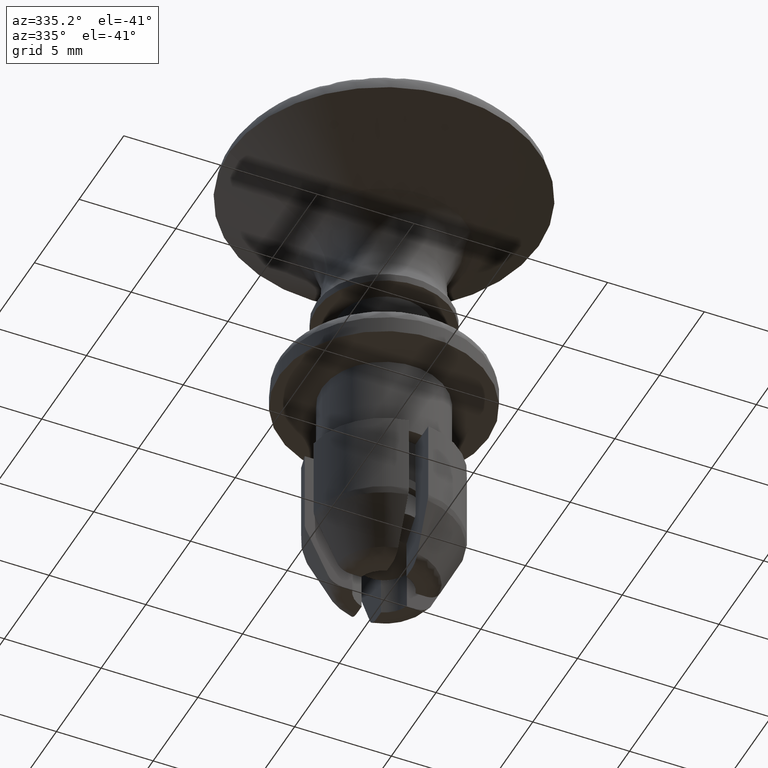
[diagram: clean part render]
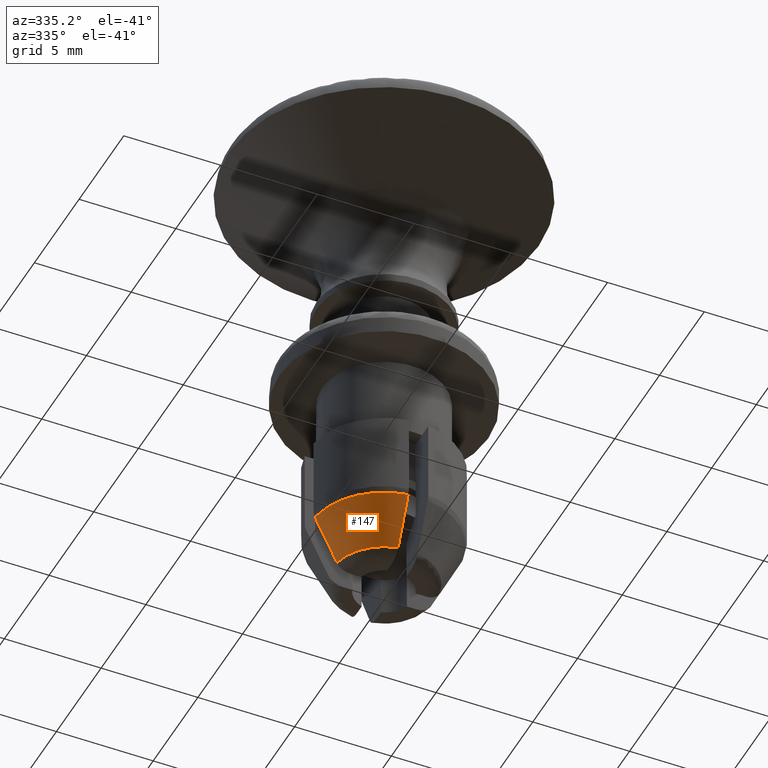
[diagram: same view with one face highlighted and labeled with its STEP entity id]
A machine part, auxiliary view. The second image highlights one B-rep face of the part: STEP entity #147.
In plain terms, the highlighted face is a freeform B-spline surface patch.
Its self-contained STEP definition (entity closure, byte-faithful):
#147=ADVANCED_FACE('',(#548),#547,.T.);
#547=( BOUNDED_SURFACE() B_SPLINE_SURFACE( 2,1,((#1280,#1281),(#1282,#1283),(#1284,#1285)), .UNSPECIFIED.,.F.,.F.,.F.) B_SPLINE_SURFACE_WITH_KNOTS((3,3),(2,2),(0.00000000000E+00,1.00000000000E+00),(0.00000000000E+00,1.00000000000E+00), .UNSPECIFIED. ) GEOMETRIC_REPRESENTATION_ITEM() RATIONAL_B_SPLINE_SURFACE(((1.00000000000E+00,1.00000000000E+00),(7.93286915379E-01,7.93286915379E-01),(1.00000000000E+00,1.00000000000E+00))) REPRESENTATION_ITEM('') SURFACE() );
#548=FACE_OUTER_BOUND('',#1286,.T.);
#1280=CARTESIAN_POINT('',(-2.68268514906E+00,-3.52884453567E-01,-1.30592680097E+01));
#1281=CARTESIAN_POINT('',(-3.79721476363E+00,-4.99491361261E-01,-1.06505161775E+01));
#1282=CARTESIAN_POINT('',(-2.41184620714E+00,-2.41184624663E+00,-1.30592680097E+01));
#1283=CARTESIAN_POINT('',(-3.41385496862E+00,-3.41385502452E+00,-1.06505161775E+01));
#1284=CARTESIAN_POINT('',(-3.52884409643E-01,-2.68268515484E+00,-1.30592680097E+01));
#1285=CARTESIAN_POINT('',(-4.99491299089E-01,-3.79721477180E+00,-1.06505161775E+01));
#1286=EDGE_LOOP('',(#1890,#1891,#1892,#1893));
#1890=ORIENTED_EDGE('',*,*,#2199,.F.);
#1891=ORIENTED_EDGE('',*,*,#2123,.F.);
#1892=ORIENTED_EDGE('',*,*,#2159,.F.);
#1893=ORIENTED_EDGE('',*,*,#2117,.T.);
#2117=EDGE_CURVE('',#2410,#2402,#2411,.T.);
#2123=EDGE_CURVE('',#2445,#2431,#2452,.T.);
#2159=EDGE_CURVE('',#2410,#2445,#2698,.T.);
#2199=EDGE_CURVE('',#2431,#2402,#2966,.T.);
#2402=VERTEX_POINT('',#3711);
#2410=VERTEX_POINT('',#3719);
#2411=CIRCLE('',#3723,3.82970000000E+00);
#2431=VERTEX_POINT('',#3736);
#2445=VERTEX_POINT('',#3748);
#2452=CIRCLE('',#3760,2.70602087899E+00);
#2698=(BOUNDED_CURVE() B_SPLINE_CURVE(3,(#3925,#3926,#3927,#3928),.UNSPECIFIED.,.F.,.F.) B_SPLINE_CURVE_WITH_KNOTS((4,4),(5.32152075698E-03,7.98447049075E-03),.UNSPECIFIED.) CURVE() GEOMETRIC_REPRESENTATION_ITEM() RATIONAL_B_SPLINE_CURVE((1.00000000000E+00,1.00000000000E+00,1.00000000000E+00,1.00000000000E+00)) REPRESENTATION_ITEM('') );
#2966=(BOUNDED_CURVE() B_SPLINE_CURVE(3,(#4098,#4099,#4100,#4101),.UNSPECIFIED.,.F.,.F.) B_SPLINE_CURVE_WITH_KNOTS((4,4),(3.45102029413E-03,6.11390777930E-03),.UNSPECIFIED.) CURVE() GEOMETRIC_REPRESENTATION_ITEM() RATIONAL_B_SPLINE_CURVE((1.00000000000E+00,1.00000000000E+00,1.00000000000E+00,1.00000000000E+00)) REPRESENTATION_ITEM('') );
#3711=CARTESIAN_POINT('',(-3.79692007949E+00,-5.00000000000E-01,-1.06510000000E+01));
#3719=CARTESIAN_POINT('',(-5.00000000000E-01,-3.79692007949E+00,-1.06510000000E+01));
#3720=CARTESIAN_POINT('',(0.00000000000E+00,0.00000000000E+00,-1.06510000000E+01));
#3721=DIRECTION('',(0.00000000000E+00,0.00000000000E+00,-1.00000000000E+00));
#3722=DIRECTION('',(1.00000000000E+00,-0.00000000000E+00,-0.00000000000E+00));
#3723=AXIS2_PLACEMENT_3D('',#3720,#3721,#3722);
#3736=CARTESIAN_POINT('',(-2.65942644146E+00,-5.00000000000E-01,-1.30587841873E+01));
#3748=CARTESIAN_POINT('',(-5.00000000000E-01,-2.65942644146E+00,-1.30587841873E+01));
#3757=CARTESIAN_POINT('',(0.00000000000E+00,0.00000000000E+00,-1.30587841873E+01));
#3758=DIRECTION('',(0.00000000000E+00,0.00000000000E+00,-1.00000000000E+00));
#3759=DIRECTION('',(1.00000000000E+00,-0.00000000000E+00,-0.00000000000E+00));
#3760=AXIS2_PLACEMENT_3D('',#3757,#3758,#3759);
#3925=CARTESIAN_POINT('',(-5.00000000000E-01,-3.79692007949E+00,-1.06510000000E+01));
#3926=CARTESIAN_POINT('',(-5.00000000000E-01,-3.41887801935E+00,-1.14541230100E+01));
#3927=CARTESIAN_POINT('',(-5.00000000000E-01,-3.04019102778E+00,-1.22569424928E+01));
#3928=CARTESIAN_POINT('',(-5.00000000000E-01,-2.65942644146E+00,-1.30587841873E+01));
#4098=CARTESIAN_POINT('',(-2.65942644146E+00,-5.00000000000E-01,-1.30587841873E+01));
#4099=CARTESIAN_POINT('',(-3.04018866588E+00,-5.00000000000E-01,-1.22569474666E+01));
#4100=CARTESIAN_POINT('',(-3.41887760360E+00,-5.00000000000E-01,-1.14541238932E+01));
#4101=CARTESIAN_POINT('',(-3.79692007949E+00,-5.00000000000E-01,-1.06510000000E+01));